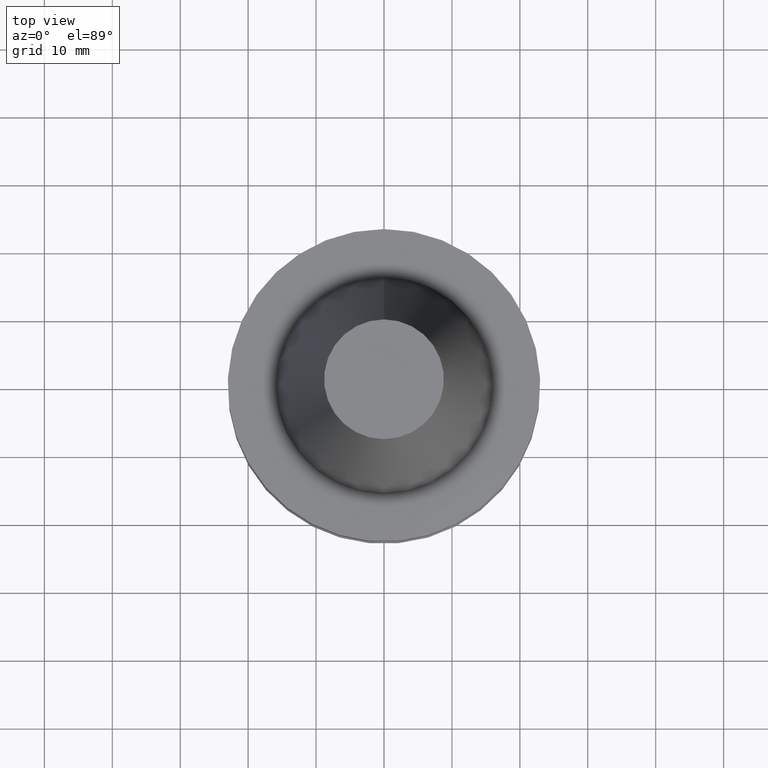
[diagram: clean part render]
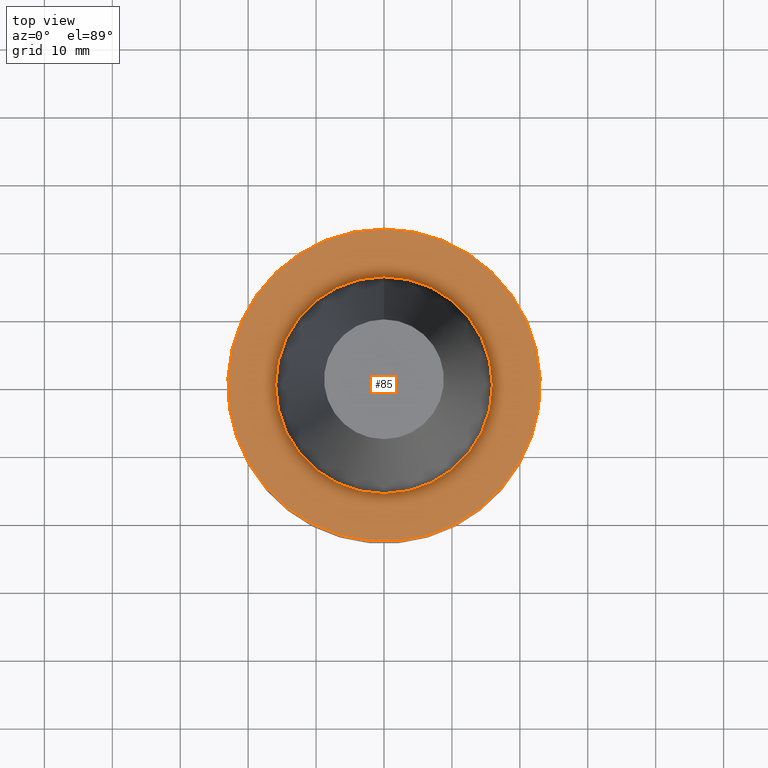
[diagram: same view with one face highlighted and labeled with its STEP entity id]
A machine part, top view. The second image highlights one B-rep face of the part: STEP entity #85.
In plain terms, the highlighted planar face has unit normal (-0, -0, 1).
Its self-contained STEP definition (entity closure, byte-faithful):
#85=ADVANCED_FACE('',(#117,#118),#119,.T.);
#117=FACE_BOUND('',#154,.T.);
#118=FACE_OUTER_BOUND('',#155,.T.);
#119=PLANE('',#156);
#154=EDGE_LOOP('',(#211));
#155=EDGE_LOOP('',(#212));
#156=AXIS2_PLACEMENT_3D('',#213,#214,#215);
#211=ORIENTED_EDGE('',*,*,#236,.F.);
#212=ORIENTED_EDGE('',*,*,#235,.T.);
#213=CARTESIAN_POINT('',(1.22464679914735E-016,19.4739594999998,-2.0));
#214=DIRECTION('',(-6.12323399573677E-017,-1.22464679914735E-016,1.0));
#215=DIRECTION('',(-1.23259516440783E-032,1.0,1.22464679914735E-016));
#235=EDGE_CURVE('',#256,#256,#257,.T.);
#236=EDGE_CURVE('',#258,#258,#259,.T.);
#256=VERTEX_POINT('',#280);
#257=CIRCLE('',#281,23.0);
#258=VERTEX_POINT('',#282);
#259=CIRCLE('',#283,15.9479189999996);
#280=CARTESIAN_POINT('',(1.22464679914735E-016,23.0,-2.0));
#281=AXIS2_PLACEMENT_3D('',#313,#314,#315);
#282=CARTESIAN_POINT('',(1.22464679914735E-016,15.9479189999996,-2.0));
#283=AXIS2_PLACEMENT_3D('',#316,#317,#318);
#313=CARTESIAN_POINT('',(1.22464679914735E-016,2.44929359829471E-016,-2.0));
#314=DIRECTION('',(-6.12323399573677E-017,-1.22464679914735E-016,1.0));
#315=DIRECTION('',(-1.23259516440783E-032,1.0,1.22464679914735E-016));
#316=CARTESIAN_POINT('',(1.22464679914735E-016,2.44929359829471E-016,-2.0));
#317=DIRECTION('',(-6.12323399573676E-017,-1.22464679914735E-016,1.0));
#318=DIRECTION('',(-1.23259516440783E-032,1.0,1.22464679914735E-016));